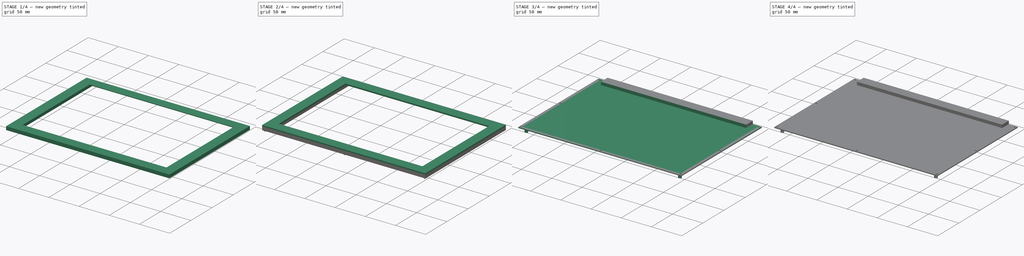
[diagram: build sequence overview — one tinted view per stage of 4, left to right]
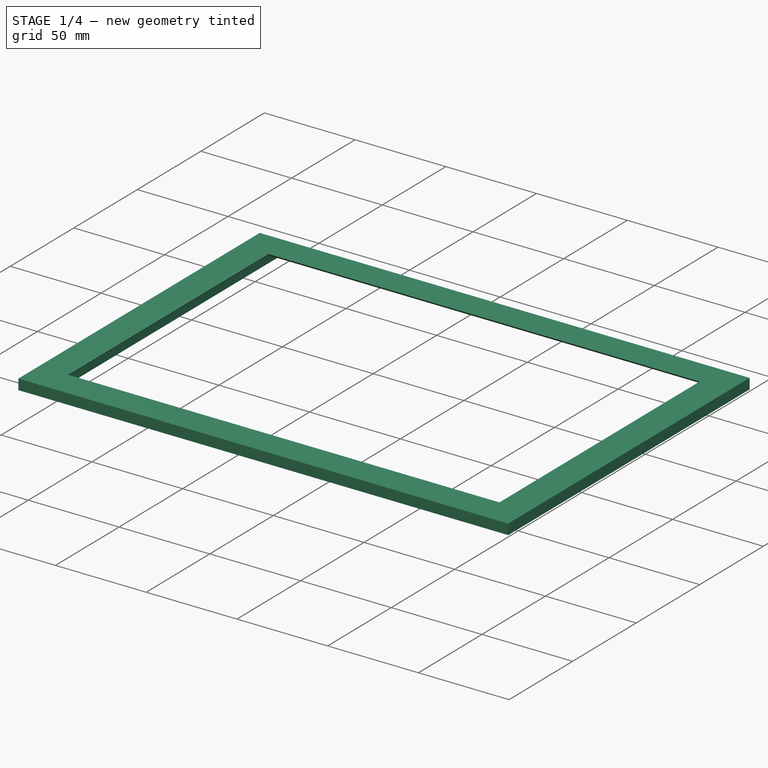
[diagram: stage 1 of 4 — iso view after this stage's code; geometry added in this stage tinted green]
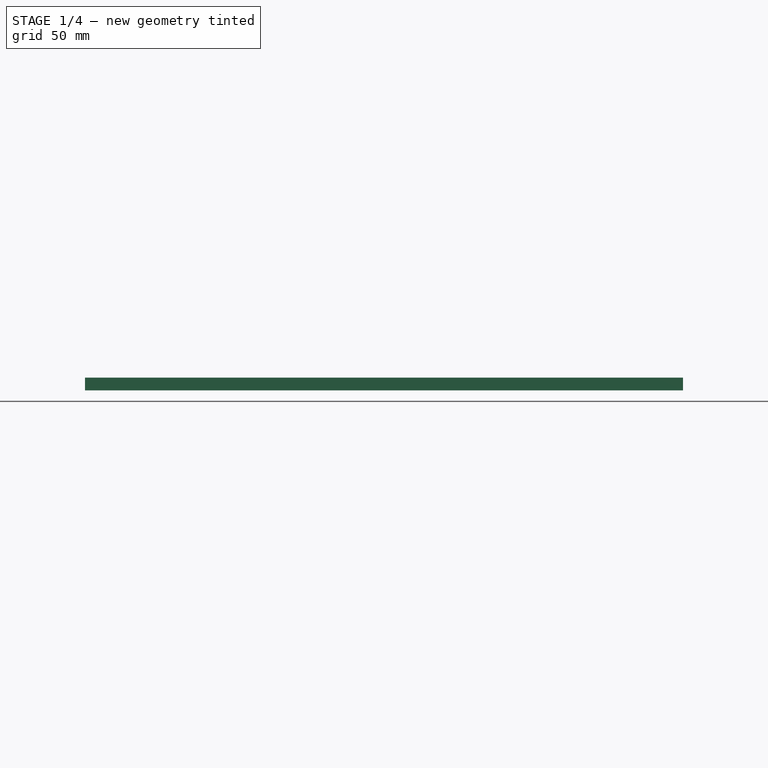
[diagram: stage 1 of 4 — front view after this stage's code; geometry added in this stage tinted green]
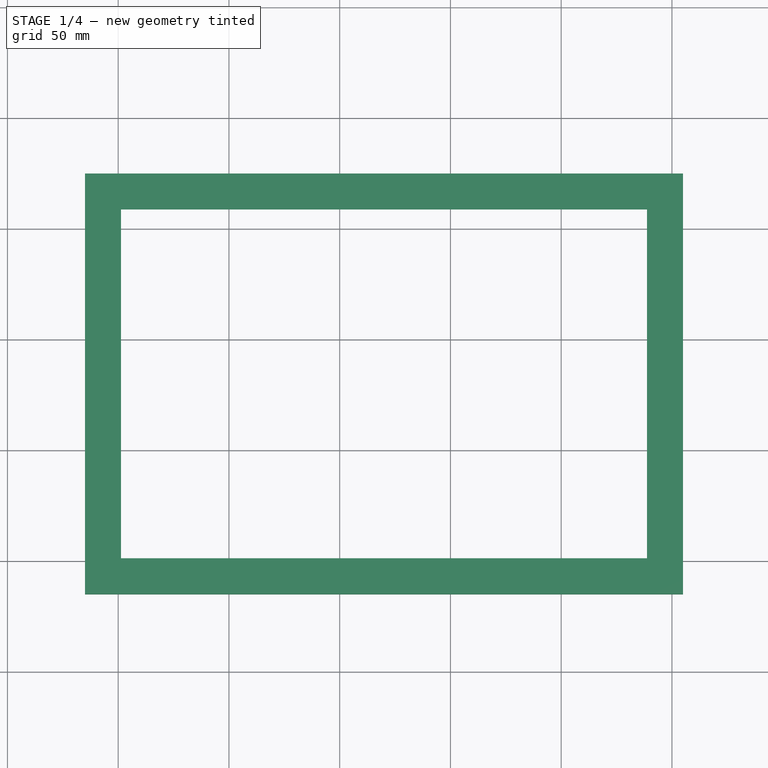
[diagram: stage 1 of 4 — top view after this stage's code; geometry added in this stage tinted green]
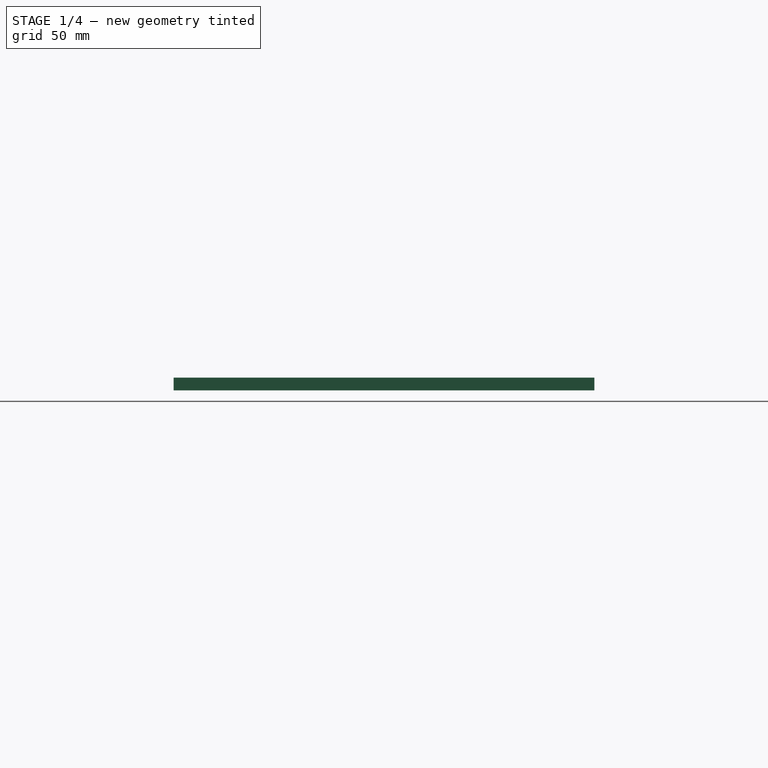
[diagram: stage 1 of 4 — right view after this stage's code; geometry added in this stage tinted green]
FCSTD DOCUMENT  (FreeCAD 1.1R20260325 (Git shallow))
Label: Frame
License: Creative Commons Attribution 4.0
objects: Sketcher::SketchObject×10, PartDesign::Pad×7, App::Point×4, PartDesign::Body×4, PartDesign::SubShapeBinder×3, PartDesign::Chamfer×3, PartDesign::Pocket×2, PartDesign::AdditiveLoft×1
note: 66 computed .brp shape members not serialized (recipe doc carries the construction recipe); baked Part::Feature solids carry a one-line shape summary decoded from their .brp

FEATURE [App::Point] Origin001
  Role = Origin
FEATURE [Sketcher::SketchObject] Sketch
  ArcFitTolerance = 1e-06
  AttachmentSupport = -> [Origin]
  ExternalTypes = [0]
  FullyConstrained = true
  MakeInternals = false
  MapMode = 5
  _ExternalGeoVersion = 1
  expr: Constraints[8] = href(<<Picture>>.Width)
  expr: Constraints[9] = href(<<Picture>>.Height)
  sketch-geometry (4):
    g0: LineSegment StartX=0 StartY=0 StartZ=0 EndX=240 EndY=0 EndZ=0
    g1: LineSegment StartX=240 StartY=0 StartZ=0 EndX=240 EndY=160 EndZ=0
    g2: LineSegment StartX=240 StartY=160 StartZ=0 EndX=0 EndY=160 EndZ=0
    g3: LineSegment StartX=0 StartY=160 StartZ=0 EndX=0 EndY=0 EndZ=0
  constraints (11):
    c: Coincident(g0,g1)
    c: Coincident(g1,g2)
    c: Coincident(g2,g3)
    c: Coincident(g3,g0)
    c: Horizontal(g0)
    c: Horizontal(g2)
    c: Vertical(g1)
    c: Vertical(g3)
    c: Distance(g1,g3) = 240
    c: Distance(g0,g2) = 160
    c: Coincident(g0,g-1)
FEATURE [PartDesign::Pad] Pad
  Direction = (0,0,1)
  Length = 4
  Length2 = 10
  Profile = -> Sketch
  ReferenceAxis = -> Sketch [N_Axis]
  SideType = 0
  Suppressed = false
  Type = 0
  Type2 = 0
  expr: Length = href(<<Picture>>.Thickness)
FEATURE [PartDesign::Body] Body  label="Picture"
  AllowCompound = false
  Group = -> [Sketch,Pad]
  Height = 160
  Origin = -> Origin
  TextureThickness = 1
  Thickness = 4
  Tip = -> Pad
  Width = 240
FEATURE [App::Point] Origin003
  Role = Origin
FEATURE [PartDesign::SubShapeBinder] Binder  label="Picture binder"
  BindCopyOnChange = 0
  BindMode = 0
  ClaimChildren = false
  Context = -> Body001 [Binder.]
  Fuse = false
  MakeFace = true
  OffsetFill = false
  OffsetIntersection = false
  OffsetJoinType = 0
  OffsetOpenResult = false
  PartialLoad = false
  Refine = true
  Relative = true
  Support = -> [Body]
  _Version = 2
FEATURE [Sketcher::SketchObject] Sketch001
  ArcFitTolerance = 1e-06
  AttachmentSupport = -> [Origin002]
  ExternalGeometry = -> [Binder]
  ExternalTypes = [0,0]
  FullyConstrained = true
  MakeInternals = false
  MapMode = 5
  _ExternalGeoVersion = 1
  expr: Constraints[15] = href(<<Frame>>.Width)
  expr: Constraints[16] = href(<<Frame>>.Width)
  sketch-geometry (11):
    g0: LineSegment StartX=-0.25 StartY=-0.25 StartZ=0 EndX=240.25 EndY=-0.25 EndZ=0
    g1: LineSegment StartX=240.25 StartY=-0.25 StartZ=0 EndX=240.25 EndY=160.25 EndZ=0
    g2: LineSegment StartX=-0.25 StartY=160.25 StartZ=0 EndX=-0.25 EndY=-0.25 EndZ=0
    g3: GeomPoint [constr] X=120 Y=80 Z=0
    g4: LineSegment StartX=-15 StartY=175 StartZ=0 EndX=-15 EndY=-15 EndZ=0
    g5: LineSegment StartX=-15 StartY=-15 StartZ=0 EndX=255 EndY=-15 EndZ=0
    g6: LineSegment StartX=255 StartY=-15 StartZ=0 EndX=255 EndY=175 EndZ=0
    g7: LineSegment StartX=-15 StartY=175 StartZ=0 EndX=-0.25 EndY=175 EndZ=0
    g8: LineSegment StartX=-0.25 StartY=175 StartZ=0 EndX=-0.25 EndY=160.25 EndZ=0
    g9: LineSegment StartX=255 StartY=175 StartZ=0 EndX=240.25 EndY=175 EndZ=0
    g10: LineSegment StartX=240.25 StartY=175 StartZ=0 EndX=240.25 EndY=160.25 EndZ=0
  constraints (29):
    c: Coincident(g0,g1)
    c: Coincident(g2,g0)
    c: Horizontal(g0)
    c: Vertical(g1)
    c: Vertical(g2)
    c: Symmetric(g-4,g-3,g3)
    c: Symmetric(g1,g0,g3)
    c: DistanceY(g-4,g2) = 0.25
    c: DistanceX(g2,g-4) = 0.25
    c: Coincident(g4,g5)
    c: Coincident(g5,g6)
    c: Vertical(g4)
    c: Vertical(g6)
    c: Horizontal(g5)
    c: Symmetric(g4,g6,g3)
    c: DistanceX(g-3,g6) = 15
    c: DistanceY(g-3,g6) = 15
    c: Coincident(g4,g7)
    c: Horizontal(g7)
    c: Coincident(g7,g8)
    c: Coincident(g8,g2)
    c: Coincident(g6,g9)
    c: Horizontal(g9)
    c: Coincident(g9,g10)
    c: Coincident(g10,g1)
    c: Vertical(g10)
    c: Vertical(g8)
    c: Horizontal(g7,g9)
    c: Horizontal(g2,g1)
FEATURE [PartDesign::Pad] Pad001
  Direction = (0,0,1)
  Length = 4.25
  Length2 = 10
  Profile = -> Sketch001
  ReferenceAxis = -> Sketch001 [N_Axis]
  Refine = true
  SideType = 0
  Suppressed = false
  Type = 0
  Type2 = 0
  expr: Length = <<Picture>>.Thickness + 0.25 mm
FEATURE [Sketcher::SketchObject] Sketch003
  ArcFitTolerance = 1e-06
  AttachmentSupport = -> [Pad001]
  ExternalGeometry = -> [Pad001]
  ExternalTypes = [0,0,0,0,0]
  FullyConstrained = true
  MakeInternals = false
  MapMode = 5
  Placement = pos=(0,0,4.25) rot=(0,0,1;0rad)
  _ExternalGeoVersion = 1
  sketch-geometry (10):
    g0: LineSegment StartX=-15 StartY=175 StartZ=0 EndX=255 EndY=175 EndZ=0
    g1: LineSegment StartX=-0.25 StartY=-0.25 StartZ=0 EndX=-0.25 EndY=160.25 EndZ=0
    g2: LineSegment StartX=240.25 StartY=-0.25 StartZ=0 EndX=240.25 EndY=160.25 EndZ=0
    g3: LineSegment StartX=-0.25 StartY=160.25 StartZ=0 EndX=240.25 EndY=160.25 EndZ=0
    g4: LineSegment [constr] StartX=240.25 StartY=-0.25 StartZ=0 EndX=240.25 EndY=-15 EndZ=0
    g5: LineSegment [constr] StartX=240.25 StartY=160.25 StartZ=0 EndX=240.25 EndY=175 EndZ=0
    g6: LineSegment StartX=-0.25 StartY=-0.25 StartZ=0 EndX=240.25 EndY=-0.25 EndZ=0
    g7: LineSegment StartX=-15 StartY=175 StartZ=0 EndX=-15 EndY=-15 EndZ=0
    g8: LineSegment StartX=255 StartY=175 StartZ=0 EndX=255 EndY=-15 EndZ=0
    g9: LineSegment StartX=-15 StartY=-15 StartZ=0 EndX=255 EndY=-15 EndZ=0
  constraints (24):
    c: Horizontal(g1,g2)
    c: Coincident(g3,g1)
    c: Coincident(g3,g2)
    c: Coincident(g4,g2)
    c: Vertical(g4)
    c: Coincident(g5,g2)
    c: Equal(g5,g4)
    c: Vertical(g5)
    c: PointOnObject(g5,g0)
    c: Horizontal(g4,g-5)
    c: Vertical(g2)
    c: Vertical(g1)
    c: Coincident(g0,g-4)
    c: Coincident(g0,g-3)
    c: Coincident(g6,g1)
    c: Coincident(g6,g2)
    c: Coincident(g7,g0)
    c: Coincident(g7,g-6)
    c: Coincident(g8,g0)
    c: Coincident(g8,g-5)
    c: Coincident(g9,g7)
    c: Coincident(g9,g8)
    c: Coincident(g-7,g1)
    c: Coincident(g2,g-7)
FEATURE [Sketcher::SketchObject] Sketch004
  ArcFitTolerance = 1e-06
  AttachmentOffset = pos=(0,0,1.5) rot=(0,0,1;0rad)
  AttachmentSupport = -> [Pad001]
  ExternalGeometry = -> [Sketch003,Pad001]
  ExternalTypes = [0,0,0,0,0]
  FullyConstrained = true
  MakeInternals = false
  MapMode = 5
  Placement = pos=(0,0,5.75) rot=(0,0,1;0rad)
  _ExternalGeoVersion = 1
  sketch-geometry (9):
    g0: LineSegment StartX=-15 StartY=175 StartZ=0 EndX=255 EndY=175 EndZ=0
    g1: LineSegment StartX=1.25 StartY=158.75 StartZ=0 EndX=1.25 EndY=1.25 EndZ=0
    g2: LineSegment StartX=238.75 StartY=158.75 StartZ=0 EndX=238.75 EndY=1.25 EndZ=0
    g3: LineSegment StartX=1.25 StartY=158.75 StartZ=0 EndX=238.75 EndY=158.75 EndZ=0
    g4: LineSegment StartX=1.25 StartY=1.25 StartZ=0 EndX=238.75 EndY=1.25 EndZ=0
    g5: LineSegment StartX=-15 StartY=-15 StartZ=0 EndX=-15 EndY=175 EndZ=0
    g6: LineSegment StartX=255 StartY=-15 StartZ=0 EndX=255 EndY=175 EndZ=0
    g7: LineSegment StartX=-15 StartY=-15 StartZ=0 EndX=255 EndY=-15 EndZ=0
    g8: GeomPoint [constr] X=120 Y=80 Z=0
  constraints (22):
    c: Vertical(g1)
    c: Vertical(g2)
    c: Coincident(g3,g1)
    c: Coincident(g3,g2)
    c: Horizontal(g3)
    c: Coincident(g4,g1)
    c: Coincident(g4,g2)
    c: Horizontal(g4)
    c: Coincident(g5,g0)
    c: Coincident(g6,g0)
    c: Coincident(g7,g5)
    c: Coincident(g7,g6)
    c: Symmetric(g5,g0,g8)
    c: Symmetric(g1,g2,g8)
    c: Coincident(g0,g-5)
    c: Horizontal(g0)
    c: Horizontal(g7)
    c: Coincident(g5,g-3)
    c: Vertical(g6)
    c: Vertical(g5)
    c: DistanceY(g-7,g1) = 1.5
    c: DistanceX(g-7,g1) = 1.5
FEATURE [PartDesign::AdditiveLoft] AdditiveLoft
  BaseFeature = -> Pad001
  Closed = false
  Profile = -> Sketch003
  Refine = true
  Ruled = false
  Sections = -> [Sketch004]
  Suppressed = false
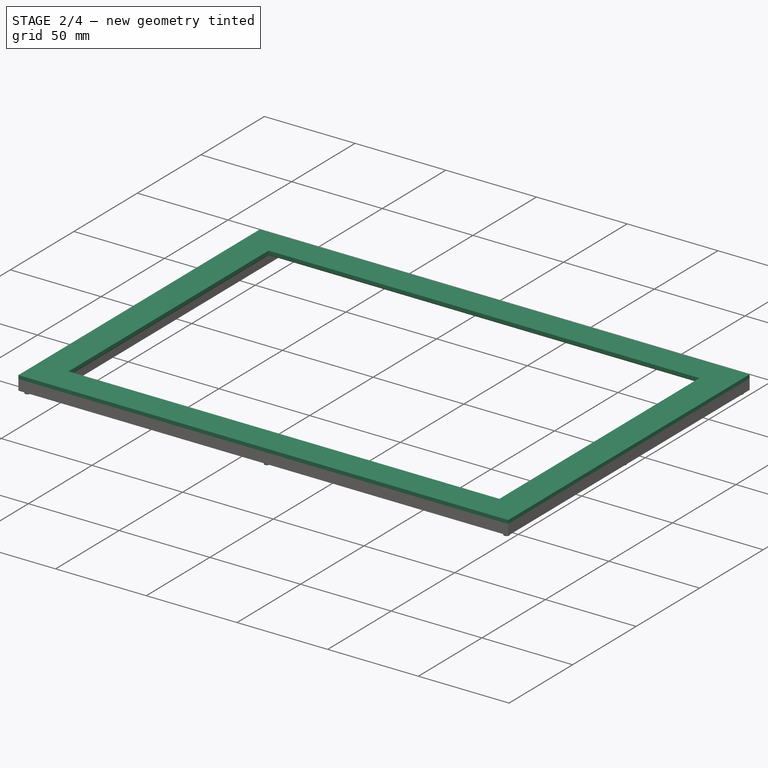
[diagram: stage 2 of 4 — iso view after this stage's code; geometry added in this stage tinted green]
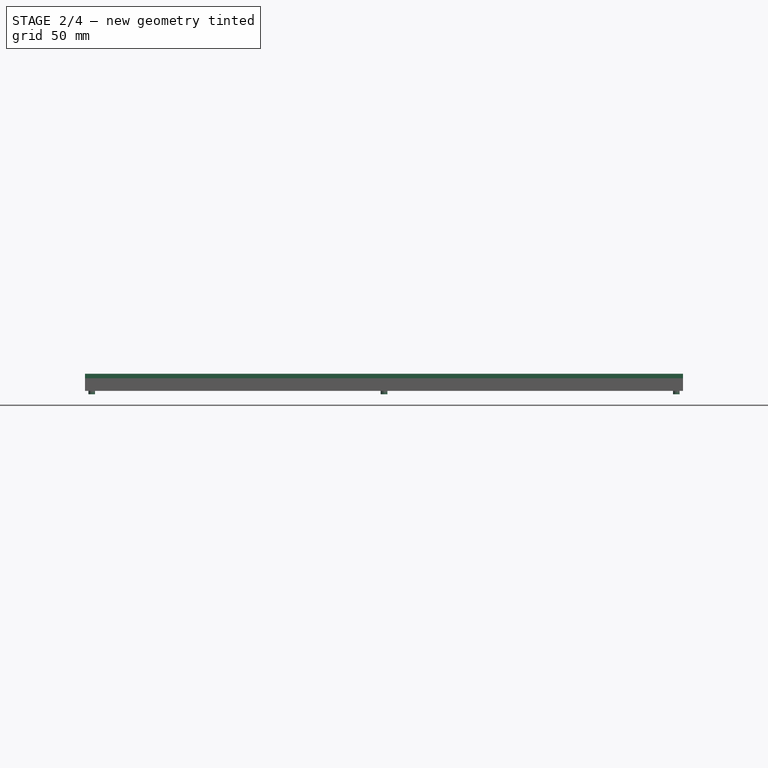
[diagram: stage 2 of 4 — front view after this stage's code; geometry added in this stage tinted green]
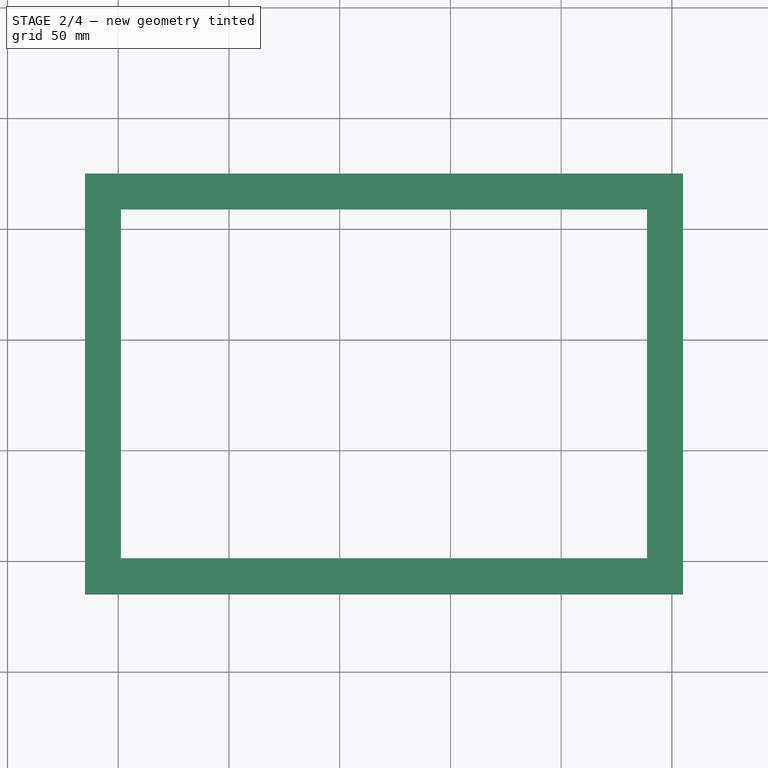
[diagram: stage 2 of 4 — top view after this stage's code; geometry added in this stage tinted green]
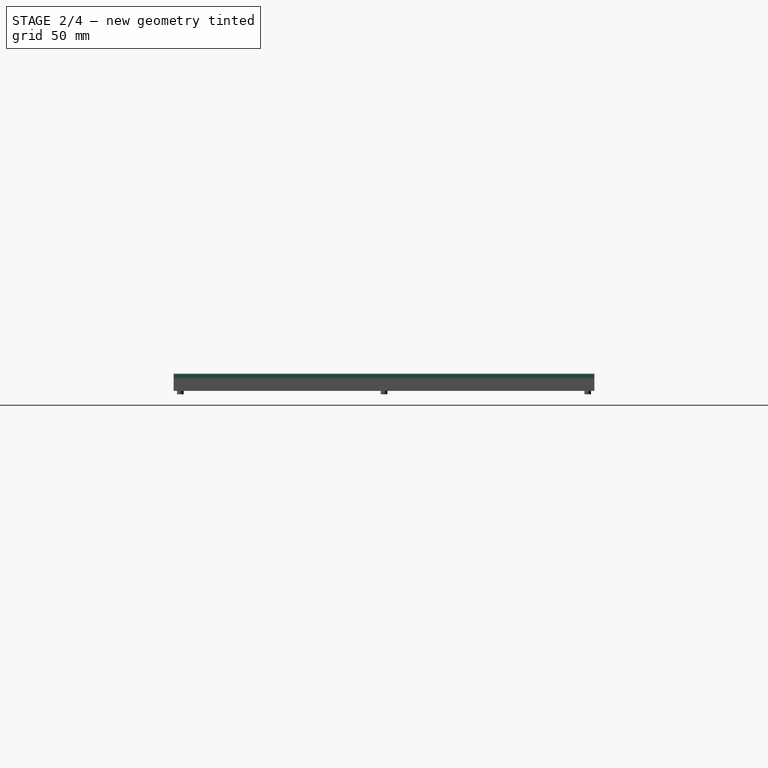
[diagram: stage 2 of 4 — right view after this stage's code; geometry added in this stage tinted green]
FEATURE [Sketcher::SketchObject] Sketch005
  ArcFitTolerance = 1e-06
  AttachmentSupport = -> [Pad001]
  ExternalGeometry = -> [AdditiveLoft]
  ExternalTypes = [0]
  FullyConstrained = true
  MakeInternals = false
  MapMode = 5
  Placement = pos=(0,175,0) rot=(0,0.707107,0.707107;3.14159rad)
  _ExternalGeoVersion = 1
  expr: Constraints[7] = <<Picture>>.TextureThickness
  sketch-geometry (3):
    g0: LineSegment StartX=-240.25 StartY=4.25 StartZ=0 EndX=-240.25 EndY=5.25 EndZ=0
    g1: LineSegment StartX=-240.25 StartY=5.25 StartZ=0 EndX=0.25 EndY=5.25 EndZ=0
    g2: LineSegment StartX=0.25 StartY=5.25 StartZ=0 EndX=0.25 EndY=4.25 EndZ=0
  constraints (8):
    c: Coincident(g-3,g0)
    c: Vertical(g0)
    c: Coincident(g0,g1)
    c: Horizontal(g1)
    c: Coincident(g1,g2)
    c: Coincident(g2,g-3)
    c: Vertical(g2)
    c: DistanceY(g0,g0) = 1
FEATURE [PartDesign::Pocket] Pocket
  BaseFeature = -> AdditiveLoft
  Direction = (0,-1,2e-16)
  Length = 15.75
  Length2 = 5
  Profile = -> Sketch005
  ReferenceAxis = -> Sketch005 [N_Axis]
  Refine = true
  SideType = 0
  Suppressed = false
  Type = 0
  Type2 = 0
  expr: Length = href(<<Frame>>.Width) + <<Picture>>.TextureThickness - 0.25 mm
FEATURE [Sketcher::SketchObject] Sketch006
  ArcFitTolerance = 1e-06
  AttachmentSupport = -> [Pocket]
  ExternalGeometry = -> [Pocket]
  ExternalTypes = [0,0,0,0]
  FullyConstrained = true
  MakeInternals = false
  MapMode = 5
  Placement = pos=(0,0,0) rot=(1,0,0;3.14159rad)
  _ExternalGeoVersion = 1
  sketch-geometry (9):
    g0: Circle CenterX=120 CenterY=12 CenterZ=0 NormalX=0 NormalY=0 NormalZ=1 AngleXU=0 Radius=1.5
    g1: LineSegment [constr] StartX=120 StartY=15 StartZ=0 EndX=120 EndY=-175 EndZ=0
    g2: LineSegment [constr] StartX=-15 StartY=-80 StartZ=0 EndX=255 EndY=-80 EndZ=0
    g3: Circle CenterX=252 CenterY=12 CenterZ=0 NormalX=0 NormalY=0 NormalZ=1 AngleXU=0 Radius=1.5
    g4: Circle CenterX=-12 CenterY=12 CenterZ=0 NormalX=0 NormalY=0 NormalZ=1 AngleXU=0 Radius=1.5
    g5: Circle CenterX=252 CenterY=-172 CenterZ=0 NormalX=0 NormalY=0 NormalZ=1 AngleXU=0 Radius=1.5
    g6: Circle CenterX=-12 CenterY=-172 CenterZ=0 NormalX=0 NormalY=0 NormalZ=1 AngleXU=0 Radius=1.5
    g7: Circle CenterX=252 CenterY=-80 CenterZ=0 NormalX=0 NormalY=0 NormalZ=1 AngleXU=0 Radius=1.5
    g8: Circle CenterX=-12 CenterY=-80 CenterZ=0 NormalX=0 NormalY=0 NormalZ=1 AngleXU=0 Radius=1.5
  constraints (20):
    c: Symmetric(g-6,g-5,g1)
    c: Symmetric(g-4,g-3,g1)
    c: Symmetric(g-3,g-6,g2)
    c: Symmetric(g-4,g-5,g2)
    c: PointOnObject(g0,g1)
    c: Diameter(g0) = 3
    c: DistanceY(g0,g1) = 3
    c: Horizontal(g0,g3)
    c: Equal(g0,g3)
    c: DistanceX(g3,g-4) = 3
    c: Equal(g4,g0)
    c: Symmetric(g4,g3,g1)
    c: Equal(g0,g5)
    c: Symmetric(g3,g5,g2)
    c: Equal(g0,g6)
    c: Symmetric(g4,g6,g2)
    c: Equal(g0,g7)
    c: Symmetric(g5,g3,g7)
    c: Equal(g0,g8)
    c: Symmetric(g4,g6,g8)
FEATURE [PartDesign::Pad] Pad002
  BaseFeature = -> Pocket
  Direction = (0,0,-1)
  Length = 1.5
  Length2 = 10
  Profile = -> Sketch006
  ReferenceAxis = -> Sketch006 [N_Axis]
  SideType = 0
  Suppressed = false
  Type = 0
  Type2 = 0
FEATURE [PartDesign::Body] Body002  label="Back"
  AllowCompound = false
  Depth = 7
  Group = -> [Binder001,Sketch007,Pad003,Sketch008,Pad004,Chamfer,Sketch009,Pocket001,Chamfer001,Chamfer002]
  Height = 17.5
  NailSectionHeight = 7.5
  Origin = -> Origin004
  Tip = -> Chamfer002
  Width = 5
FEATURE [PartDesign::Pad] Pad005
  BaseFeature = -> Pad002
  Direction = (0,0,1)
  Length = 2
  Length2 = 10
  Profile = -> Sketch004
  ReferenceAxis = -> Sketch004 [N_Axis]
  Refine = true
  SideType = 0
  Suppressed = false
  Type = 0
  Type2 = 0
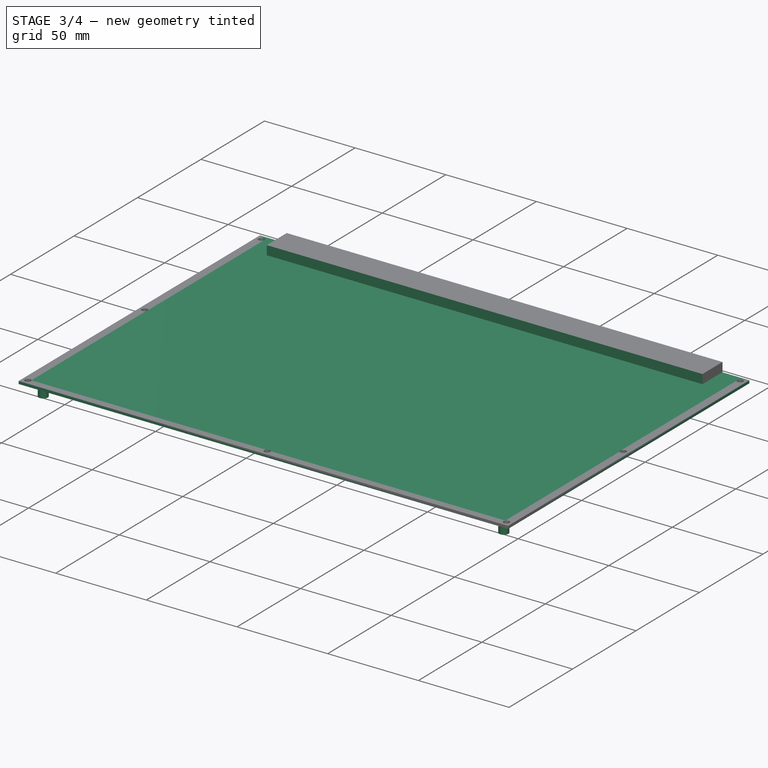
[diagram: stage 3 of 4 — iso view after this stage's code; geometry added in this stage tinted green]
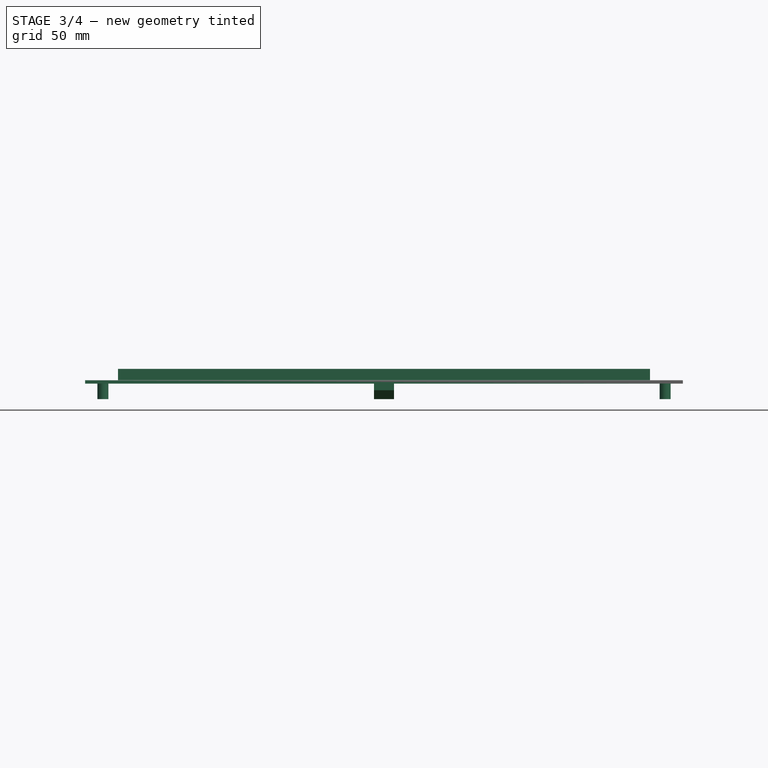
[diagram: stage 3 of 4 — front view after this stage's code; geometry added in this stage tinted green]
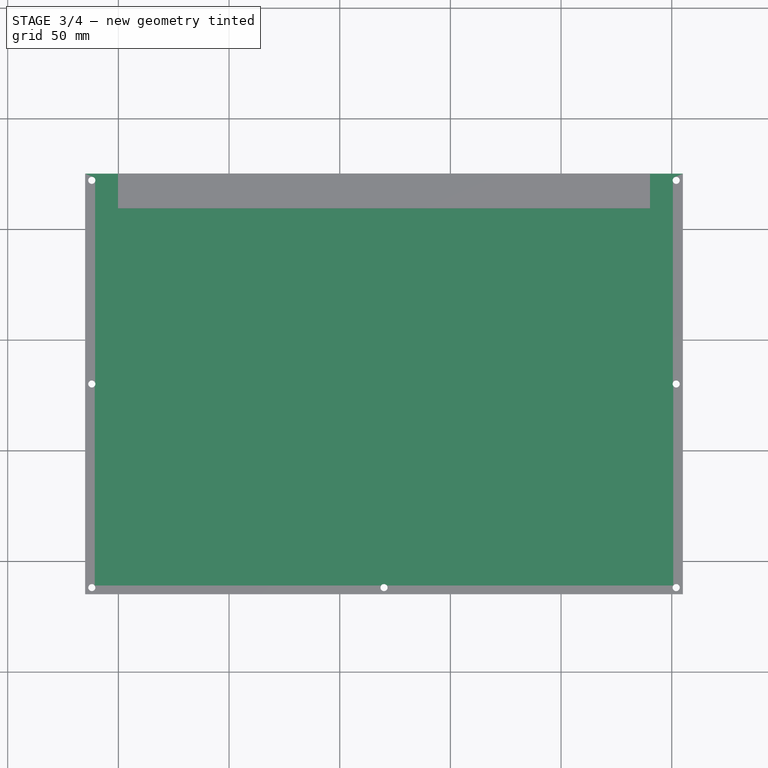
[diagram: stage 3 of 4 — top view after this stage's code; geometry added in this stage tinted green]
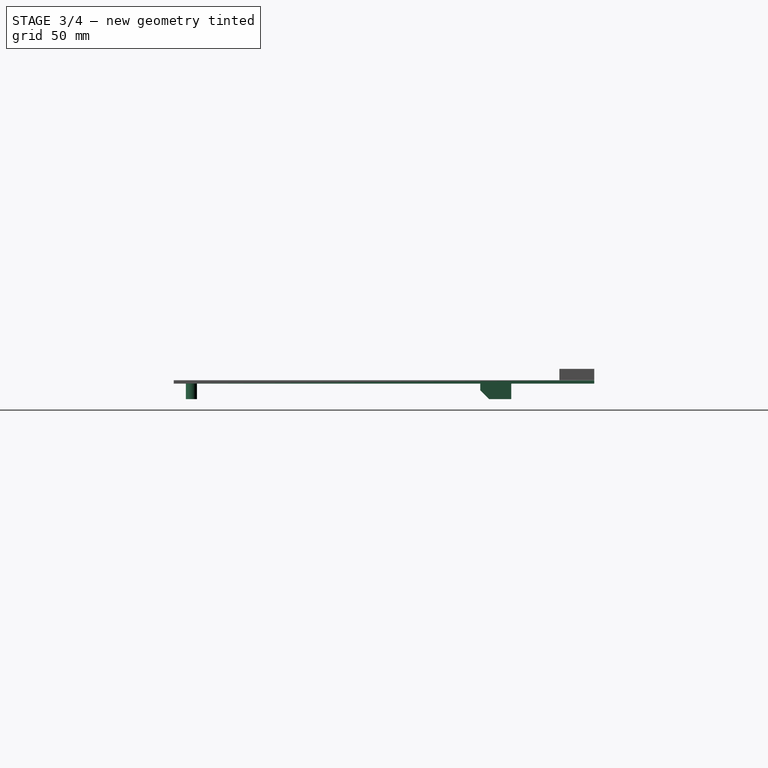
[diagram: stage 3 of 4 — right view after this stage's code; geometry added in this stage tinted green]
FEATURE [App::Point] Origin005  label="Origin006"
  Role = Origin
FEATURE [PartDesign::SubShapeBinder] Binder001
  BindCopyOnChange = 0
  BindMode = 0
  ClaimChildren = false
  Context = -> Body002 [Binder001.]
  Fuse = false
  MakeFace = true
  OffsetFill = false
  OffsetIntersection = false
  OffsetJoinType = 0
  OffsetOpenResult = false
  PartialLoad = false
  Refine = true
  Relative = true
  Support = -> [Body001]
  _Version = 2
FEATURE [Sketcher::SketchObject] Sketch007
  ArcFitTolerance = 1e-06
  AttachmentSupport = -> [Binder001]
  ExternalGeometry = -> [Binder001]
  ExternalTypes = [0,0,0,0,0,0,0,0,0,0,0]
  FullyConstrained = true
  MakeInternals = false
  MapMode = 5
  Placement = pos=(0,0,0) rot=(1,0,0;3.14159rad)
  _ExternalGeoVersion = 1
  sketch-geometry (10):
    g0: Circle CenterX=-12 CenterY=-172 CenterZ=0 NormalX=0 NormalY=0 NormalZ=1 AngleXU=0 Radius=1.6
    g1: Circle CenterX=252 CenterY=-172 CenterZ=0 NormalX=0 NormalY=0 NormalZ=1 AngleXU=0 Radius=1.6
    g2: Circle CenterX=252 CenterY=-80 CenterZ=0 NormalX=0 NormalY=0 NormalZ=1 AngleXU=0 Radius=1.6
    g3: Circle CenterX=-12 CenterY=-80 CenterZ=0 NormalX=0 NormalY=0 NormalZ=1 AngleXU=0 Radius=1.6
    g4: Circle CenterX=252 CenterY=12 CenterZ=0 NormalX=0 NormalY=0 NormalZ=1 AngleXU=0 Radius=1.6
    g5: Circle CenterX=120 CenterY=12 CenterZ=0 NormalX=0 NormalY=0 NormalZ=1 AngleXU=0 Radius=1.6
    g6: Circle CenterX=-12 CenterY=12 CenterZ=0 NormalX=0 NormalY=0 NormalZ=1 AngleXU=0 Radius=1.6
    g7: LineSegment StartX=-15 StartY=-175 StartZ=0 EndX=255 EndY=-175 EndZ=0
    g8: GeomPoint [constr] X=-10.4 Y=-172 Z=0
    g9: GeomPoint [constr] X=-10.5 Y=-172 Z=0
  constraints (20):
    c: Coincident(g0,g-8)
    c: Coincident(g1,g-7)
    c: Coincident(g2,g-6)
    c: Coincident(g3,g-9)
    c: Coincident(g4,g-5)
    c: Coincident(g5,g-4)
    c: Coincident(g6,g-3)
    c: Equal(g0,g3)
    c: Equal(g3,g2)
    c: Equal(g2,g1)
    c: Equal(g1,g4)
    c: Equal(g4,g5)
    c: Equal(g5,g6)
    c: Coincident(g7,g-10)
    c: Coincident(g7,g-12)
    c: PointOnObject(g8,g0)
    c: PointOnObject(g9,g-8)
    c: Horizontal(g0,g9)
    c: Horizontal(g9,g8)
    c: DistanceX(g9,g8) = 0.1
FEATURE [PartDesign::Pad] Pad003
  Direction = (0,0,-1)
  Length = 1.5
  Length2 = 10
  Profile = -> Sketch007
  ReferenceAxis = -> Sketch007 [N_Axis]
  SideType = 0
  Suppressed = false
  Type = 0
  Type2 = 0
FEATURE [Sketcher::SketchObject] Sketch008
  ArcFitTolerance = 1e-06
  AttachmentSupport = -> [Pad003]
  ExternalGeometry = -> [Pad003,Binder001]
  ExternalTypes = [0,0,0]
  FullyConstrained = true
  MakeInternals = false
  MapMode = 5
  Placement = pos=(0,0,-1.5) rot=(1,0,0;3.14159rad)
  _ExternalGeoVersion = 1
  expr: Constraints[10] = href(<<Back>>.Depth) * 2
  expr: Constraints[19] = href(<<Back>>.NailSectionHeight) + 30 mm
  expr: Constraints[8] = href(<<Back>>.Width) + 4 mm
  sketch-geometry (8):
    g0: LineSegment StartX=124.5 StartY=-137.5 StartZ=0 EndX=124.5 EndY=-123.5 EndZ=0
    g1: LineSegment StartX=124.5 StartY=-123.5 StartZ=0 EndX=115.5 EndY=-123.5 EndZ=0
    g2: LineSegment StartX=115.5 StartY=-123.5 StartZ=0 EndX=115.5 EndY=-137.5 EndZ=0
    g3: LineSegment StartX=115.5 StartY=-137.5 StartZ=0 EndX=124.5 EndY=-137.5 EndZ=0
    g4: GeomPoint [constr] X=120 Y=-137.5 Z=0
    g5: Circle CenterX=247 CenterY=7 CenterZ=0 NormalX=0 NormalY=0 NormalZ=1 AngleXU=0 Radius=2.5
    g6: Circle CenterX=-7 CenterY=7 CenterZ=0 NormalX=0 NormalY=0 NormalZ=1 AngleXU=0 Radius=2.5
    g7: GeomPoint [constr] X=120 Y=-175 Z=0
  constraints (20):
    c: Coincident(g0,g1)
    c: Coincident(g1,g2)
    c: Coincident(g2,g3)
    c: Coincident(g3,g0)
    c: Vertical(g0)
    c: Vertical(g2)
    c: Horizontal(g1)
    c: Horizontal(g3)
    c: DistanceX(g3,g3) = 9
    c: Symmetric(g0,g2,g4)
    c: DistanceY(g2,g2) = 14
    c: Diameter(g5) = 5
    c: DistanceX(g5,g-3) = 8
    c: DistanceY(g5,g-3) = 8
    c: Equal(g5,g6)
    c: Horizontal(g5,g6)
    c: DistanceX(g-4,g6) = 8
    c: Symmetric(g-5,g-5,g7)
    c: Vertical(g7,g4)
    c: DistanceY(g7,g4) = 37.5
FEATURE [PartDesign::Pad] Pad004
  BaseFeature = -> Pad003
  Direction = (0,0,-1)
  Length = 7
  Length2 = 10
  Profile = -> Sketch008
  ReferenceAxis = -> Sketch008 [N_Axis]
  SideType = 0
  Suppressed = false
  Type = 0
  Type2 = 0
  expr: Length = href(<<Back>>.Depth)
FEATURE [PartDesign::Chamfer] Chamfer
  Angle = 45
  Base = -> Pad004 [Edge50]
  BaseFeature = -> Pad004
  ChamferType = 0
  FlipDirection = false
  Size = 4
  Size2 = 1
  SupportTransform = false
  Suppressed = false
  UseAllEdges = false
FEATURE [PartDesign::Body] Body001  label="Frame"
  AllowCompound = false
  Group = -> [Binder,Sketch001,Pad001,Sketch003,Sketch004,AdditiveLoft,Sketch005,Pocket,Sketch006,Pad002,Pad005]
  Origin = -> Origin002
  Tip = -> Pad005
  Width = 15
FEATURE [App::Point] Origin007  label="Origin009"
  Role = Origin
FEATURE [PartDesign::SubShapeBinder] Binder002  label="Frame binder"
  BindCopyOnChange = 0
  BindMode = 0
  ClaimChildren = false
  Context = -> Body003 [Binder002.]
  Fuse = false
  MakeFace = true
  OffsetFill = false
  OffsetIntersection = false
  OffsetJoinType = 0
  OffsetOpenResult = false
  PartialLoad = false
  Refine = true
  Relative = true
  Support = -> [Body001]
  _Version = 2
FEATURE [Sketcher::SketchObject] Sketch010
  ArcFitTolerance = 1e-06
  AttachmentSupport = -> [Binder002]
  ExternalGeometry = -> [Binder002]
  ExternalTypes = [0]
  FullyConstrained = true
  MakeInternals = false
  MapMode = 5
  Placement = pos=(0,175,0) rot=(0,0.707107,0.707107;3.14159rad)
  _ExternalGeoVersion = 1
  sketch-geometry (4):
    g0: LineSegment StartX=-240.15 StartY=0.1 StartZ=0 EndX=0.15 EndY=0.1 EndZ=0
    g1: LineSegment StartX=0.15 StartY=0.1 StartZ=0 EndX=0.15 EndY=5.15 EndZ=0
    g2: LineSegment StartX=0.15 StartY=5.15 StartZ=0 EndX=-240.15 EndY=5.15 EndZ=0
    g3: LineSegment StartX=-240.15 StartY=5.15 StartZ=0 EndX=-240.15 EndY=0.1 EndZ=0
  constraints (12):
    c: Coincident(g0,g1)
    c: Coincident(g1,g2)
    c: Horizontal(g0)
    c: Horizontal(g2)
    c: Vertical(g1)
    c: DistanceX(g1,g-3) = 0.1
    c: Coincident(g3,g2)
    c: Coincident(g3,g0)
    c: Vertical(g3)
    c: DistanceY(g1,g-3) = 0.1
    c: DistanceY(g-3,g0) = 0.1
    c: DistanceX(g-4,g0) = 0.1
FEATURE [PartDesign::Pad] Pad006
  Direction = (0,1,-2e-16)
  Length = 10
  Length2 = 10
  Profile = -> Sketch010
  ReferenceAxis = -> Sketch010 [N_Axis]
  Reversed = true
  SideType = 0
  Suppressed = false
  Type = 3
  Type2 = 0
  UpToFace = -> Binder002 [Face15]
FEATURE [PartDesign::Body] Body003  label="Plug"
  AllowCompound = false
  Group = -> [Binder002,Sketch010,Pad006]
  Origin = -> Origin006
  Tip = -> Pad006
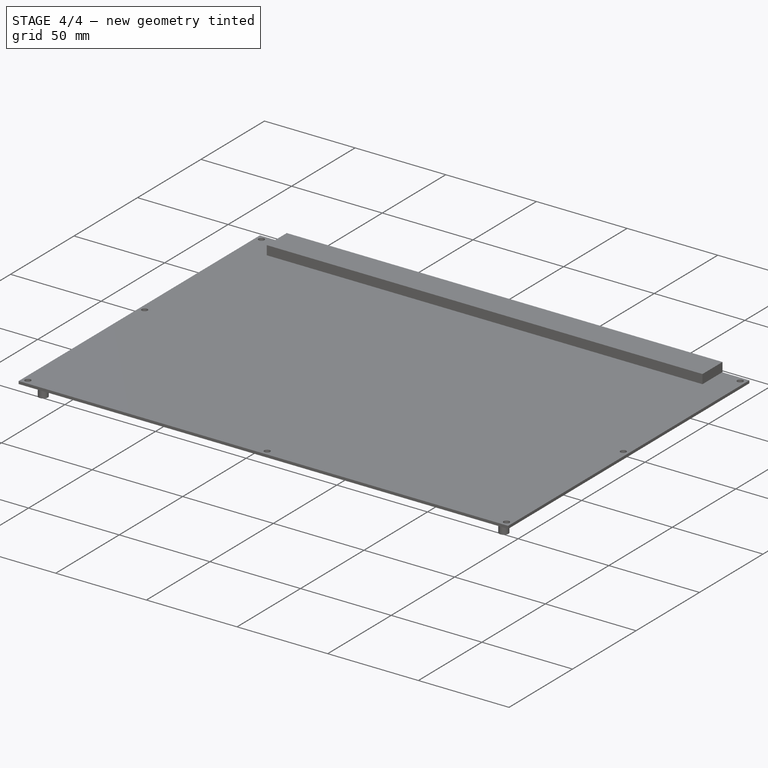
[diagram: stage 4 of 4 — iso view after this stage's code; geometry added in this stage tinted green]
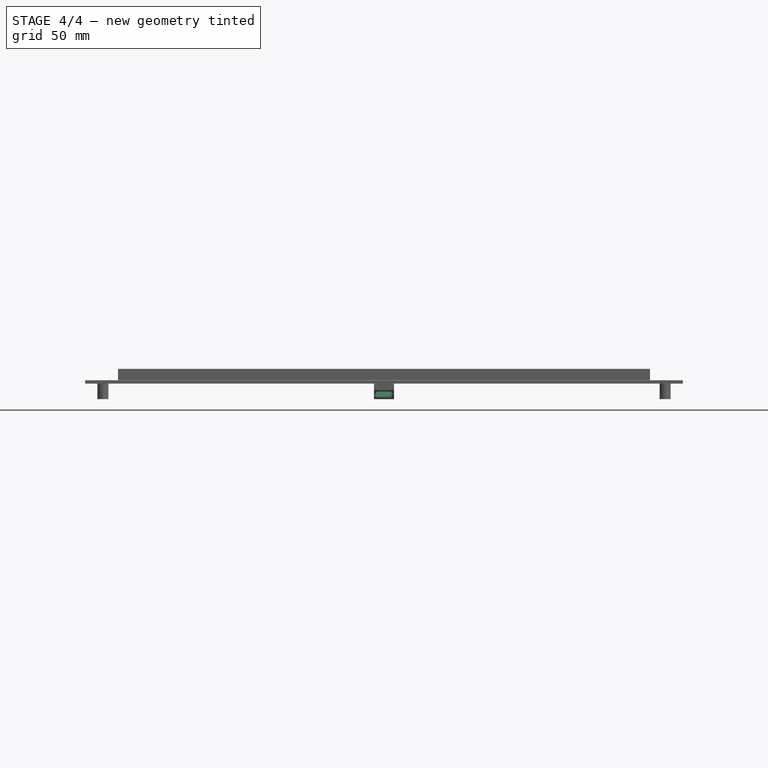
[diagram: stage 4 of 4 — front view after this stage's code; geometry added in this stage tinted green]
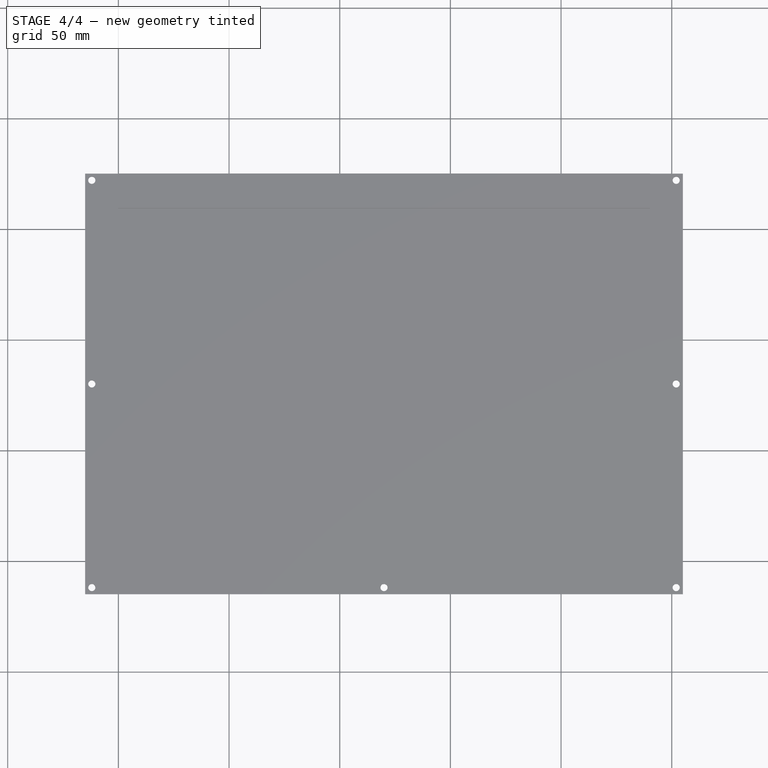
[diagram: stage 4 of 4 — top view after this stage's code; geometry added in this stage tinted green]
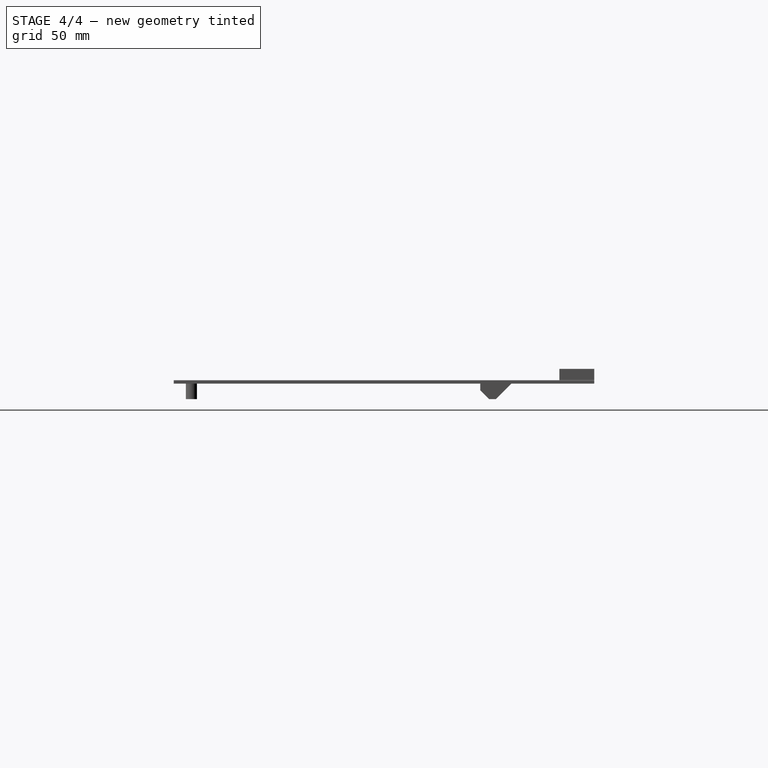
[diagram: stage 4 of 4 — right view after this stage's code; geometry added in this stage tinted green]
FEATURE [Sketcher::SketchObject] Sketch009
  ArcFitTolerance = 1e-06
  AttachmentSupport = -> [Chamfer]
  ExternalGeometry = -> [Chamfer]
  ExternalTypes = [0,0,0,0]
  FullyConstrained = true
  MakeInternals = false
  MapMode = 5
  Placement = pos=(0,59.5,59.5) rot=(1,0,0;2.35619rad)
  _ExternalGeoVersion = 1
  expr: Constraints[10] = href(<<Back>>.Width)
  sketch-geometry (8):
    g0: ArcOfCircle CenterX=117.5 CenterY=-93.3381 CenterZ=0 NormalX=0 NormalY=0 NormalZ=1 AngleXU=0 Radius=1.5 StartAngle=1.5708 EndAngle=4.71239
    g1: ArcOfCircle CenterX=122.5 CenterY=-93.3381 CenterZ=0 NormalX=0 NormalY=0 NormalZ=1 AngleXU=0 Radius=1.5 StartAngle=4.71239 EndAngle=7.85398
    g2: LineSegment StartX=117.5 StartY=-91.8381 StartZ=0 EndX=122.5 EndY=-91.8381 EndZ=0
    g3: LineSegment StartX=117.5 StartY=-94.8381 StartZ=0 EndX=122.5 EndY=-94.8381 EndZ=0
    g4: GeomPoint [constr] X=119 Y=-93.3381 Z=0
    g5: GeomPoint [constr] X=124 Y=-93.3381 Z=0
    g6: LineSegment [constr] StartX=115.5 StartY=-93.3381 StartZ=0 EndX=124.5 EndY=-93.3381 EndZ=0
    g7: GeomPoint [constr] X=120 Y=-93.3381 Z=0
  constraints (16):
    c: Tangent(g0,g2) = 1.5708
    c: Tangent(g0,g3) = -1.5708
    c: Tangent(g1,g2) = 1.5708
    c: Tangent(g1,g3) = -1.5708
    c: Equal(g0,g1)
    c: Horizontal(g2)
    c: PointOnObject(g4,g0)
    c: PointOnObject(g5,g1)
    c: Horizontal(g1,g5)
    c: Horizontal(g4,g0)
    c: DistanceX(g4,g5) = 5
    c: Symmetric(g-5,g-6,g6)
    c: Symmetric(g-3,g-4,g6)
    c: Symmetric(g6,g6,g7)
    c: Symmetric(g0,g1,g7)
    c: DistanceY(g1,g1) = 3
FEATURE [PartDesign::Pocket] Pocket001
  BaseFeature = -> Chamfer
  Direction = (0,0.707107,0.707107)
  Length = 5
  Length2 = 5
  Profile = -> Sketch009
  ReferenceAxis = -> Sketch009 [N_Axis]
  SideType = 0
  Suppressed = false
  Type = 3
  Type2 = 0
  UpToFace = -> Chamfer [Face4]
FEATURE [PartDesign::Chamfer] Chamfer001
  Angle = 45
  Base = -> Pocket001 [Edge12]
  BaseFeature = -> Pocket001
  ChamferType = 0
  FlipDirection = false
  Size = 0.5
  Size2 = 1
  SupportTransform = false
  Suppressed = false
  UseAllEdges = false
FEATURE [PartDesign::Chamfer] Chamfer002
  Angle = 45
  Base = -> Chamfer001 [Edge23]
  BaseFeature = -> Chamfer001
  ChamferType = 0
  FlipDirection = false
  Size = 6.95
  Size2 = 1
  SupportTransform = false
  Suppressed = false
  UseAllEdges = false
  expr: Size = href(<<Back>>.Depth) - 0.05 mm
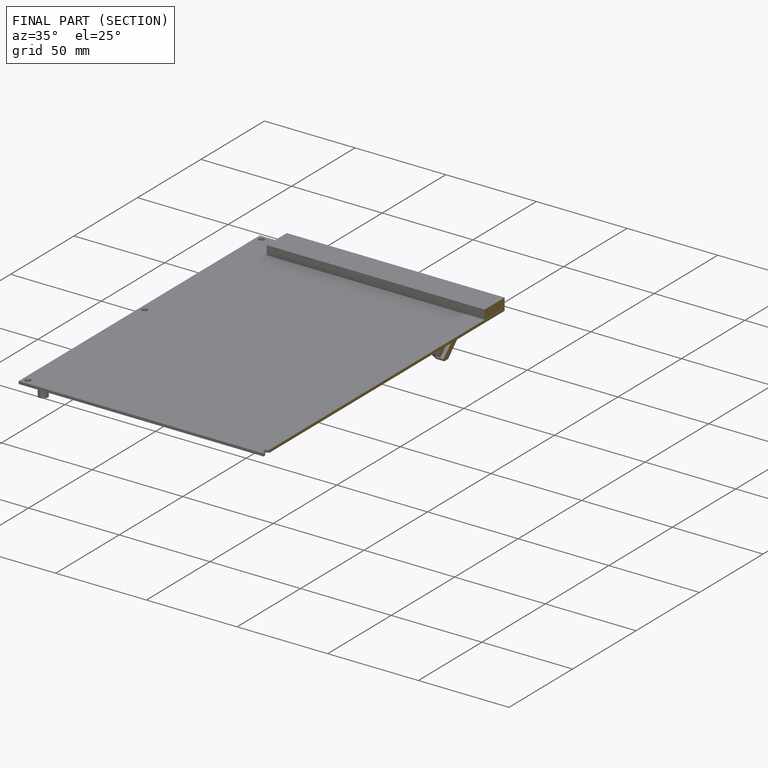
[diagram: finished part — half-section view (interior)]
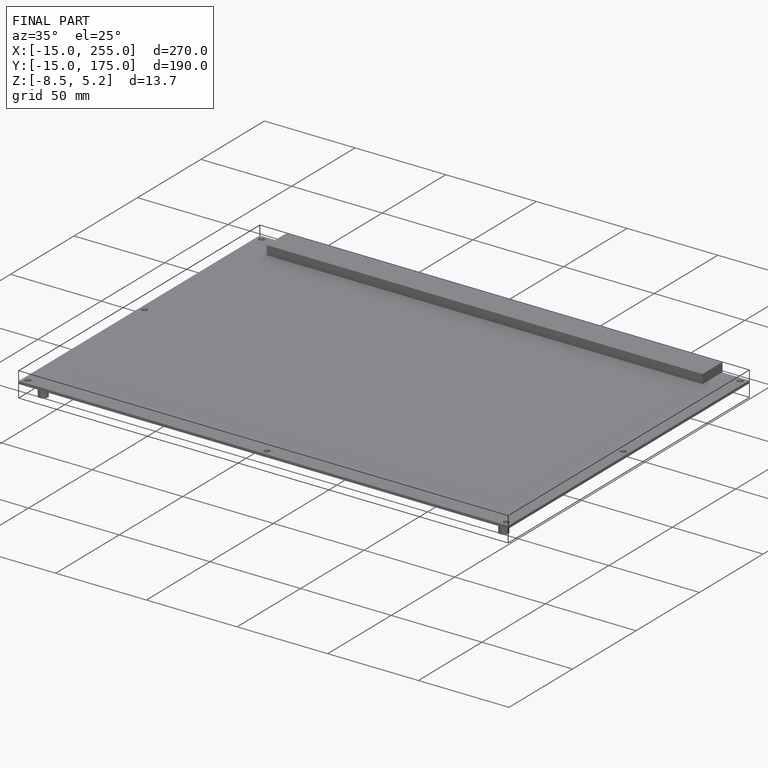
[diagram: finished part — iso view with bounding-box wireframe]
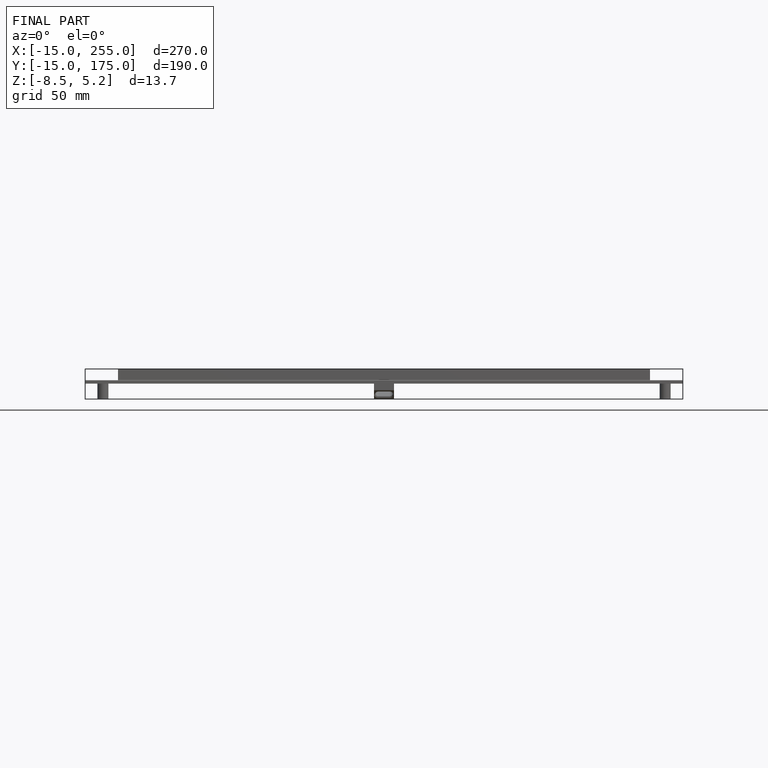
[diagram: finished part — front view with bounding-box wireframe]
